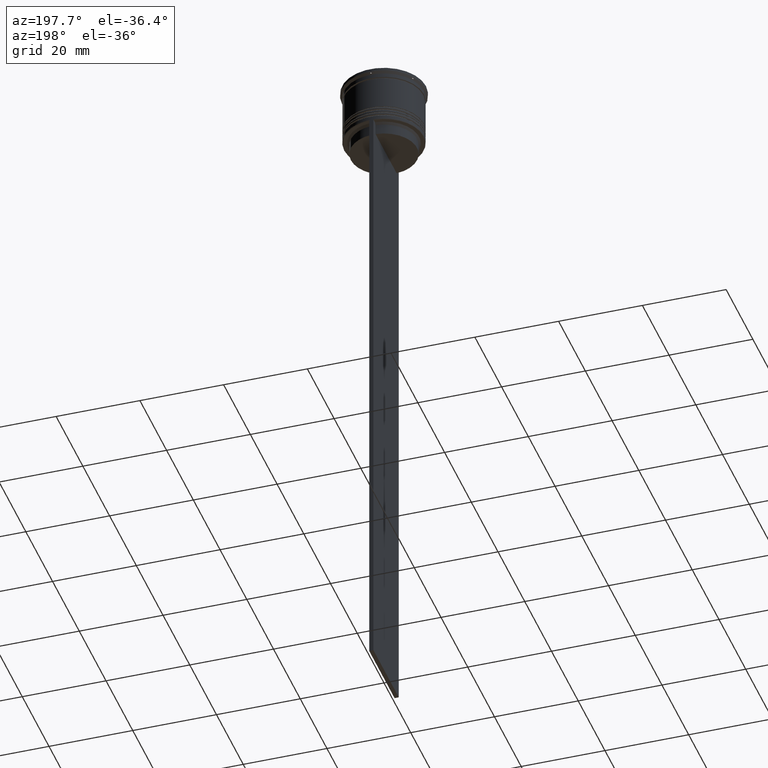
[diagram: clean part render]
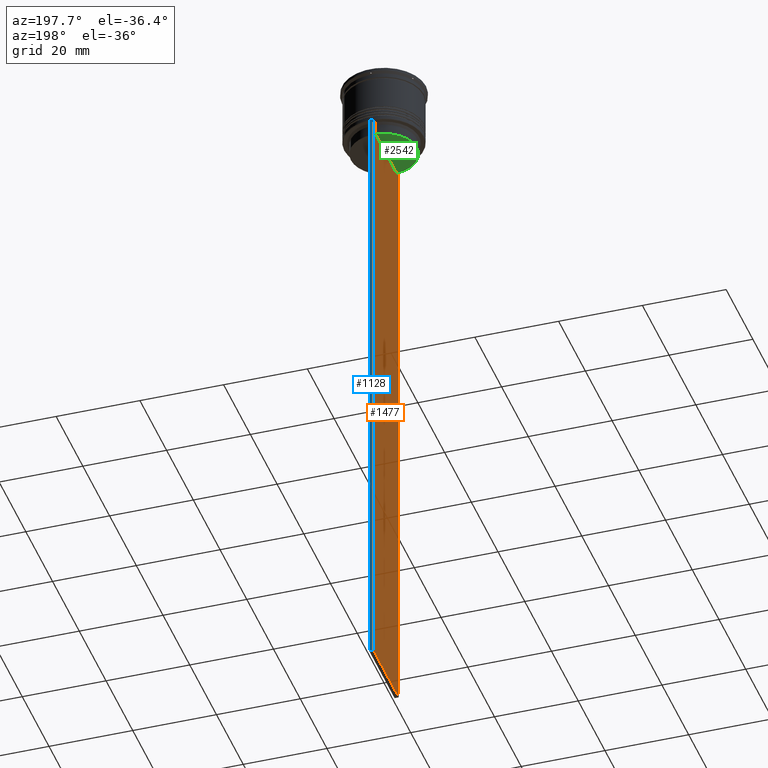
[diagram: same view with three faces highlighted in distinct colors, each labeled with its STEP entity id]
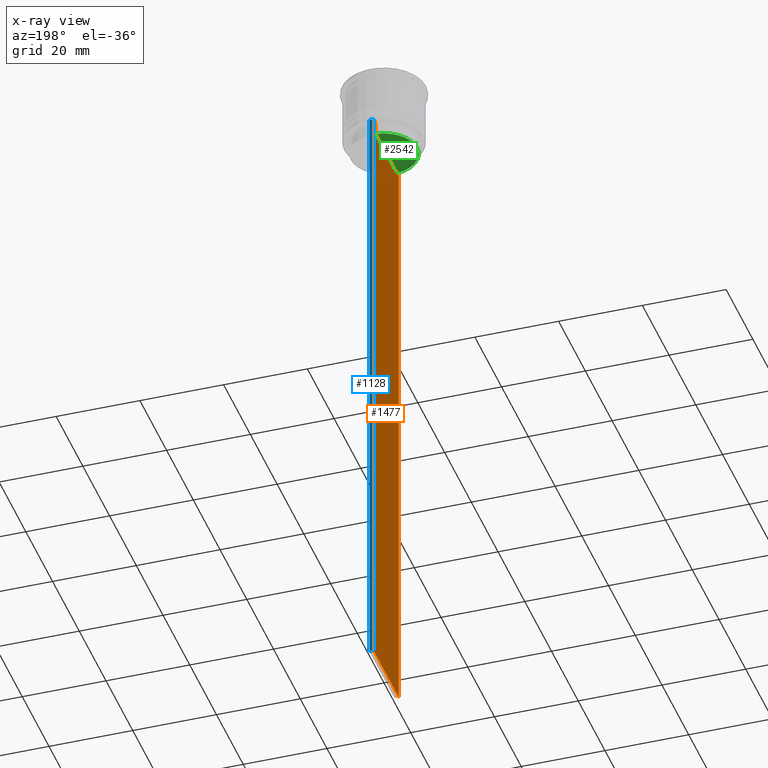
[diagram: x-ray of the same camera — body ghosted, the three highlighted faces saturated]
A machine part, auxiliary view with three faces highlighted in distinct colors.
The next image is the same camera in x-ray (body ghosted, the three faces saturated) — at least one of them is partly hidden behind the body in this view.
Their STEP definitions:

[orange] entity #1477 — the highlighted planar face has unit normal (-1, 0, 0).
#1 = VERTEX_POINT ( 'NONE', #2505 ) ;
#3 = ORIENTED_EDGE ( 'NONE', *, *, #1761, .F. ) ;
#6 = LINE ( 'NONE', #831, #2220 ) ;
#84 = CARTESIAN_POINT ( 'NONE',  ( -0.5000000000000000000, -9.500000000000001776, 5.026297590440445440 ) ) ;
#111 = CARTESIAN_POINT ( 'NONE',  ( -0.5000000000000000000, -7.884161337770803080, -14.50000000000000000 ) ) ;
#175 = CARTESIAN_POINT ( 'NONE',  ( -0.5000000000000000000, -7.884161337770803080, -17.00000000000000000 ) ) ;
#185 = AXIS2_PLACEMENT_3D ( 'NONE', #2371, #1107, #2326 ) ;
#221 = CARTESIAN_POINT ( 'NONE',  ( -0.5000000000000000000, 8.385105843100605583, -14.00000000000000178 ) ) ;
#265 = EDGE_CURVE ( 'NONE', #2573, #1, #2145, .T. ) ;
#278 = LINE ( 'NONE', #698, #2513 ) ;
#331 = B_SPLINE_CURVE_WITH_KNOTS ( 'NONE', 3,
 ( #407, #2029, #2243, #2444 ),
 .UNSPECIFIED., .F., .F.,
 ( 4, 4 ),
 ( 0.01426761478740281447, 0.01497538974438914448 ),
 .UNSPECIFIED. ) ;
#344 = VERTEX_POINT ( 'NONE', #1195 ) ;
#365 = DIRECTION ( 'NONE',  ( -0.000000000000000000, -0.000000000000000000, 1.000000000000000000 ) ) ;
#370 = CARTESIAN_POINT ( 'NONE',  ( -0.5000000000000000000, -9.500000000000001776, -14.00000000000000178 ) ) ;
#392 = CARTESIAN_POINT ( 'NONE',  ( -0.5000000000000000000, -7.884161337770803080, -14.50000000000000000 ) ) ;
#398 = B_SPLINE_CURVE_WITH_KNOTS ( 'NONE', 3,
 ( #111, #1759, #1813, #2634 ),
 .UNSPECIFIED., .F., .F.,
 ( 4, 4 ),
 ( 0.03673372442973153046, 0.03744389749832059688 ),
 .UNSPECIFIED. ) ;
#407 = CARTESIAN_POINT ( 'NONE',  ( -0.5000000000000000000, 8.385105843100605583, -14.00000000000000178 ) ) ;
#422 = DIRECTION ( 'NONE',  ( 0.000000000000000000, -1.000000000000000000, 0.000000000000000000 ) ) ;
#445 = CARTESIAN_POINT ( 'NONE',  ( -0.5000000000000000000, -8.385105843100605583, -14.00000000000000178 ) ) ;
#466 = EDGE_CURVE ( 'NONE', #497, #1396, #398, .T. ) ;
#487 = VECTOR ( 'NONE', #821, 1000.000000000000000 ) ;
#497 = VERTEX_POINT ( 'NONE', #392 ) ;
#566 = DIRECTION ( 'NONE',  ( 0.000000000000000000, -1.000000000000000000, 0.000000000000000000 ) ) ;
#574 = VERTEX_POINT ( 'NONE', #850 ) ;
#610 = VERTEX_POINT ( 'NONE', #2035 ) ;
#679 = VERTEX_POINT ( 'NONE', #221 ) ;
#686 = DIRECTION ( 'NONE',  ( 0.000000000000000000, 0.000000000000000000, -1.000000000000000000 ) ) ;
#698 = CARTESIAN_POINT ( 'NONE',  ( -0.5000000000000000000, -9.500000000000001776, -14.00000000000000178 ) ) ;
#719 = ORIENTED_EDGE ( 'NONE', *, *, #1665, .F. ) ;
#779 = LINE ( 'NONE', #370, #1572 ) ;
#821 = DIRECTION ( 'NONE',  ( 0.000000000000000000, 0.000000000000000000, -1.000000000000000000 ) ) ;
#822 = LINE ( 'NONE', #1169, #1231 ) ;
#831 = CARTESIAN_POINT ( 'NONE',  ( -0.5000000000000000000, 9.499999999999998224, 5.026297590440445440 ) ) ;
#846 = CARTESIAN_POINT ( 'NONE',  ( -0.5000000000000000000, -9.500000000000001776, -14.00000000000000178 ) ) ;
#850 = CARTESIAN_POINT ( 'NONE',  ( -0.5000000000000000000, 7.884161337770803080, -14.50000000000000000 ) ) ;
#894 = CARTESIAN_POINT ( 'NONE',  ( -0.5000000000000000000, -9.500000000000001776, -14.00000000000000178 ) ) ;
#910 = DIRECTION ( 'NONE',  ( 0.000000000000000000, 1.000000000000000000, 0.000000000000000000 ) ) ;
#956 = CARTESIAN_POINT ( 'NONE',  ( -0.5000000000000000000, -9.500000000000001776, -14.00000000000000178 ) ) ;
#971 = ORIENTED_EDGE ( 'NONE', *, *, #2351, .F. ) ;
#1068 = ORIENTED_EDGE ( 'NONE', *, *, #1878, .F. ) ;
#1105 = ORIENTED_EDGE ( 'NONE', *, *, #1318, .F. ) ;
#1107 = DIRECTION ( 'NONE',  ( -1.000000000000000000, 0.000000000000000000, 0.000000000000000000 ) ) ;
#1133 = CARTESIAN_POINT ( 'NONE',  ( -0.5000000000000000000, -9.386692708297204035, -14.00000000000000178 ) ) ;
#1145 = VERTEX_POINT ( 'NONE', #175 ) ;
#1149 = EDGE_CURVE ( 'NONE', #679, #574, #331, .T. ) ;
#1169 = CARTESIAN_POINT ( 'NONE',  ( -0.5000000000000000000, 7.899999999999994138, -17.00000000000000000 ) ) ;
#1174 = VECTOR ( 'NONE', #1530, 1000.000000000000000 ) ;
#1179 = VECTOR ( 'NONE', #910, 1000.000000000000000 ) ;
#1195 = CARTESIAN_POINT ( 'NONE',  ( -0.5000000000000000000, -9.500000000000001776, -163.9999999999999716 ) ) ;
#1231 = VECTOR ( 'NONE', #566, 1000.000000000000000 ) ;
#1318 = EDGE_CURVE ( 'NONE', #1396, #1567, #779, .T. ) ;
#1323 = ORIENTED_EDGE ( 'NONE', *, *, #1149, .F. ) ;
#1342 = ORIENTED_EDGE ( 'NONE', *, *, #1875, .F. ) ;
#1343 = CARTESIAN_POINT ( 'NONE',  ( -0.5000000000000000000, 9.499999999999998224, -163.9999999999999716 ) ) ;
#1389 = CARTESIAN_POINT ( 'NONE',  ( -0.5000000000000000000, -7.884161337770803080, 0.000000000000000000 ) ) ;
#1396 = VERTEX_POINT ( 'NONE', #445 ) ;
#1402 = EDGE_CURVE ( 'NONE', #1, #679, #2272, .T. ) ;
#1437 = ORIENTED_EDGE ( 'NONE', *, *, #2399, .T. ) ;
#1477 = ADVANCED_FACE ( 'NONE', ( #1891 ), #1523, .T. ) ;
#1523 = PLANE ( 'NONE',  #185 ) ;
#1530 = DIRECTION ( 'NONE',  ( 0.000000000000000000, -1.000000000000000000, 0.000000000000000000 ) ) ;
#1548 = VERTEX_POINT ( 'NONE', #956 ) ;
#1561 = VECTOR ( 'NONE', #365, 1000.000000000000000 ) ;
#1567 = VERTEX_POINT ( 'NONE', #1133 ) ;
#1572 = VECTOR ( 'NONE', #1828, 1000.000000000000000 ) ;
#1600 = LINE ( 'NONE', #1389, #1561 ) ;
#1657 = DIRECTION ( 'NONE',  ( 0.000000000000000000, 0.000000000000000000, -1.000000000000000000 ) ) ;
#1665 = EDGE_CURVE ( 'NONE', #1145, #497, #1600, .T. ) ;
#1759 = CARTESIAN_POINT ( 'NONE',  ( -0.5000000000000000000, -8.051152795888546265, -14.33334334204685057 ) ) ;
#1761 = EDGE_CURVE ( 'NONE', #344, #2608, #2068, .T. ) ;
#1785 = EDGE_LOOP ( 'NONE', ( #1323, #2581, #2324, #1437, #3, #1342, #1068, #1105, #1978, #719, #971, #1970 ) ) ;
#1813 = CARTESIAN_POINT ( 'NONE',  ( -0.5000000000000000000, -8.218133703942523738, -14.16667607853445787 ) ) ;
#1828 = DIRECTION ( 'NONE',  ( 0.000000000000000000, -1.000000000000000000, 0.000000000000000000 ) ) ;
#1849 = LINE ( 'NONE', #2669, #487 ) ;
#1875 = EDGE_CURVE ( 'NONE', #1548, #344, #2529, .T. ) ;
#1878 = EDGE_CURVE ( 'NONE', #1567, #1548, #278, .T. ) ;
#1891 = FACE_OUTER_BOUND ( 'NONE', #1785, .T. ) ;
#1970 = ORIENTED_EDGE ( 'NONE', *, *, #2104, .F. ) ;
#1978 = ORIENTED_EDGE ( 'NONE', *, *, #466, .F. ) ;
#2029 = CARTESIAN_POINT ( 'NONE',  ( -0.5000000000000000000, 8.218133718559618828, -14.16667606394327983 ) ) ;
#2035 = CARTESIAN_POINT ( 'NONE',  ( -0.5000000000000000000, 7.884161337770803080, -17.00000000000000000 ) ) ;
#2068 = LINE ( 'NONE', #2337, #1179 ) ;
#2104 = EDGE_CURVE ( 'NONE', #574, #610, #1849, .T. ) ;
#2145 = LINE ( 'NONE', #894, #1174 ) ;
#2220 = VECTOR ( 'NONE', #1657, 1000.000000000000000 ) ;
#2243 = CARTESIAN_POINT ( 'NONE',  ( -0.5000000000000000000, 8.051152811434374001, -14.33334332653219079 ) ) ;
#2272 = LINE ( 'NONE', #846, #2435 ) ;
#2324 = ORIENTED_EDGE ( 'NONE', *, *, #265, .F. ) ;
#2326 = DIRECTION ( 'NONE',  ( 0.000000000000000000, 0.000000000000000000, 1.000000000000000000 ) ) ;
#2337 = CARTESIAN_POINT ( 'NONE',  ( -0.5000000000000000000, -9.500000000000001776, -163.9999999999999716 ) ) ;
#2351 = EDGE_CURVE ( 'NONE', #610, #1145, #822, .T. ) ;
#2365 = CARTESIAN_POINT ( 'NONE',  ( -0.5000000000000000000, 9.499999999999994671, -14.00000000000000178 ) ) ;
#2371 = CARTESIAN_POINT ( 'NONE',  ( -0.5000000000000000000, -9.500000000000001776, 5.026297590440445440 ) ) ;
#2399 = EDGE_CURVE ( 'NONE', #2573, #2608, #6, .T. ) ;
#2435 = VECTOR ( 'NONE', #422, 1000.000000000000000 ) ;
#2444 = CARTESIAN_POINT ( 'NONE',  ( -0.5000000000000000000, 7.884161337770803080, -14.50000000000000000 ) ) ;
#2505 = CARTESIAN_POINT ( 'NONE',  ( -0.5000000000000000000, 9.386692708297204035, -14.00000000000000178 ) ) ;
#2513 = VECTOR ( 'NONE', #2556, 1000.000000000000000 ) ;
#2529 = LINE ( 'NONE', #84, #2558 ) ;
#2556 = DIRECTION ( 'NONE',  ( 0.000000000000000000, -1.000000000000000000, 0.000000000000000000 ) ) ;
#2558 = VECTOR ( 'NONE', #686, 1000.000000000000000 ) ;
#2573 = VERTEX_POINT ( 'NONE', #2365 ) ;
#2581 = ORIENTED_EDGE ( 'NONE', *, *, #1402, .F. ) ;
#2608 = VERTEX_POINT ( 'NONE', #1343 ) ;
#2634 = CARTESIAN_POINT ( 'NONE',  ( -0.5000000000000000000, -8.385105843100605583, -14.00000000000000178 ) ) ;
#2669 = CARTESIAN_POINT ( 'NONE',  ( -0.5000000000000000000, 7.884161337770803080, 0.000000000000000000 ) ) ;

[blue] entity #1128 — the highlighted planar face has unit normal (0, -1, -0).
#6 = LINE ( 'NONE', #831, #2220 ) ;
#34 = EDGE_LOOP ( 'NONE', ( #2550, #1844, #1454, #1599 ) ) ;
#326 = DIRECTION ( 'NONE',  ( -1.000000000000000000, 0.000000000000000000, 0.000000000000000000 ) ) ;
#549 = CARTESIAN_POINT ( 'NONE',  ( 0.5000000000000000000, 9.499999999999998224, -14.00000000000000178 ) ) ;
#831 = CARTESIAN_POINT ( 'NONE',  ( -0.5000000000000000000, 9.499999999999998224, 5.026297590440445440 ) ) ;
#887 = EDGE_CURVE ( 'NONE', #2636, #1175, #1892, .T. ) ;
#961 = LINE ( 'NONE', #2176, #1570 ) ;
#1128 = ADVANCED_FACE ( 'NONE', ( #1822 ), #1235, .F. ) ;
#1175 = VERTEX_POINT ( 'NONE', #1436 ) ;
#1235 = PLANE ( 'NONE',  #2343 ) ;
#1268 = VECTOR ( 'NONE', #2317, 1000.000000000000000 ) ;
#1338 = CARTESIAN_POINT ( 'NONE',  ( 0.5000000000000000000, 9.499999999999998224, 5.026297590440445440 ) ) ;
#1343 = CARTESIAN_POINT ( 'NONE',  ( -0.5000000000000000000, 9.499999999999998224, -163.9999999999999716 ) ) ;
#1423 = DIRECTION ( 'NONE',  ( 0.000000000000000000, 0.000000000000000000, -1.000000000000000000 ) ) ;
#1436 = CARTESIAN_POINT ( 'NONE',  ( 0.5000000000000000000, 9.499999999999998224, -163.9999999999999716 ) ) ;
#1454 = ORIENTED_EDGE ( 'NONE', *, *, #887, .T. ) ;
#1483 = VECTOR ( 'NONE', #1581, 1000.000000000000000 ) ;
#1570 = VECTOR ( 'NONE', #326, 1000.000000000000000 ) ;
#1581 = DIRECTION ( 'NONE',  ( 1.000000000000000000, 0.000000000000000000, 0.000000000000000000 ) ) ;
#1599 = ORIENTED_EDGE ( 'NONE', *, *, #2275, .T. ) ;
#1657 = DIRECTION ( 'NONE',  ( 0.000000000000000000, 0.000000000000000000, -1.000000000000000000 ) ) ;
#1822 = FACE_OUTER_BOUND ( 'NONE', #34, .T. ) ;
#1844 = ORIENTED_EDGE ( 'NONE', *, *, #2204, .T. ) ;
#1892 = LINE ( 'NONE', #1338, #1268 ) ;
#1932 = CARTESIAN_POINT ( 'NONE',  ( 0.5000000000000000000, 9.499999999999998224, -14.00000000000000178 ) ) ;
#2176 = CARTESIAN_POINT ( 'NONE',  ( 0.5000000000000000000, 9.499999999999998224, -163.9999999999999716 ) ) ;
#2204 = EDGE_CURVE ( 'NONE', #2573, #2636, #2593, .T. ) ;
#2220 = VECTOR ( 'NONE', #1657, 1000.000000000000000 ) ;
#2275 = EDGE_CURVE ( 'NONE', #1175, #2608, #961, .T. ) ;
#2317 = DIRECTION ( 'NONE',  ( 0.000000000000000000, 0.000000000000000000, -1.000000000000000000 ) ) ;
#2343 = AXIS2_PLACEMENT_3D ( 'NONE', #2457, #2646, #1423 ) ;
#2365 = CARTESIAN_POINT ( 'NONE',  ( -0.5000000000000000000, 9.499999999999994671, -14.00000000000000178 ) ) ;
#2399 = EDGE_CURVE ( 'NONE', #2573, #2608, #6, .T. ) ;
#2457 = CARTESIAN_POINT ( 'NONE',  ( 0.5000000000000000000, 9.499999999999998224, 5.026297590440445440 ) ) ;
#2550 = ORIENTED_EDGE ( 'NONE', *, *, #2399, .F. ) ;
#2573 = VERTEX_POINT ( 'NONE', #2365 ) ;
#2593 = LINE ( 'NONE', #1932, #1483 ) ;
#2608 = VERTEX_POINT ( 'NONE', #1343 ) ;
#2636 = VERTEX_POINT ( 'NONE', #549 ) ;
#2646 = DIRECTION ( 'NONE',  ( 0.000000000000000000, -1.000000000000000000, -0.000000000000000000 ) ) ;

[green] entity #2542 — the highlighted planar face has unit normal (0, -0, 1).
#79 = DIRECTION ( 'NONE',  ( 1.000000000000000000, 0.000000000000000000, 0.000000000000000000 ) ) ;
#156 = EDGE_CURVE ( 'NONE', #610, #1145, #916, .T. ) ;
#169 = PLANE ( 'NONE',  #714 ) ;
#175 = CARTESIAN_POINT ( 'NONE',  ( -0.5000000000000000000, -7.884161337770803080, -17.00000000000000000 ) ) ;
#403 = EDGE_LOOP ( 'NONE', ( #605, #2202 ) ) ;
#533 = DIRECTION ( 'NONE',  ( 0.000000000000000000, -0.000000000000000000, 1.000000000000000000 ) ) ;
#566 = DIRECTION ( 'NONE',  ( 0.000000000000000000, -1.000000000000000000, 0.000000000000000000 ) ) ;
#605 = ORIENTED_EDGE ( 'NONE', *, *, #156, .F. ) ;
#610 = VERTEX_POINT ( 'NONE', #2035 ) ;
#714 = AXIS2_PLACEMENT_3D ( 'NONE', #2203, #533, #1362 ) ;
#822 = LINE ( 'NONE', #1169, #1231 ) ;
#916 = CIRCLE ( 'NONE', #1392, 7.899999999999994138 ) ;
#1145 = VERTEX_POINT ( 'NONE', #175 ) ;
#1169 = CARTESIAN_POINT ( 'NONE',  ( -0.5000000000000000000, 7.899999999999994138, -17.00000000000000000 ) ) ;
#1231 = VECTOR ( 'NONE', #566, 1000.000000000000000 ) ;
#1362 = DIRECTION ( 'NONE',  ( 1.000000000000000000, 0.000000000000000000, 0.000000000000000000 ) ) ;
#1384 = FACE_OUTER_BOUND ( 'NONE', #403, .T. ) ;
#1392 = AXIS2_PLACEMENT_3D ( 'NONE', #1903, #2098, #79 ) ;
#1903 = CARTESIAN_POINT ( 'NONE',  ( 0.000000000000000000, 0.000000000000000000, -17.00000000000000000 ) ) ;
#2035 = CARTESIAN_POINT ( 'NONE',  ( -0.5000000000000000000, 7.884161337770803080, -17.00000000000000000 ) ) ;
#2098 = DIRECTION ( 'NONE',  ( -0.000000000000000000, -0.000000000000000000, 1.000000000000000000 ) ) ;
#2202 = ORIENTED_EDGE ( 'NONE', *, *, #2351, .T. ) ;
#2203 = CARTESIAN_POINT ( 'NONE',  ( 0.000000000000000000, 7.899999999999994138, -17.00000000000000000 ) ) ;
#2351 = EDGE_CURVE ( 'NONE', #610, #1145, #822, .T. ) ;
#2542 = ADVANCED_FACE ( 'NONE', ( #1384 ), #169, .F. ) ;